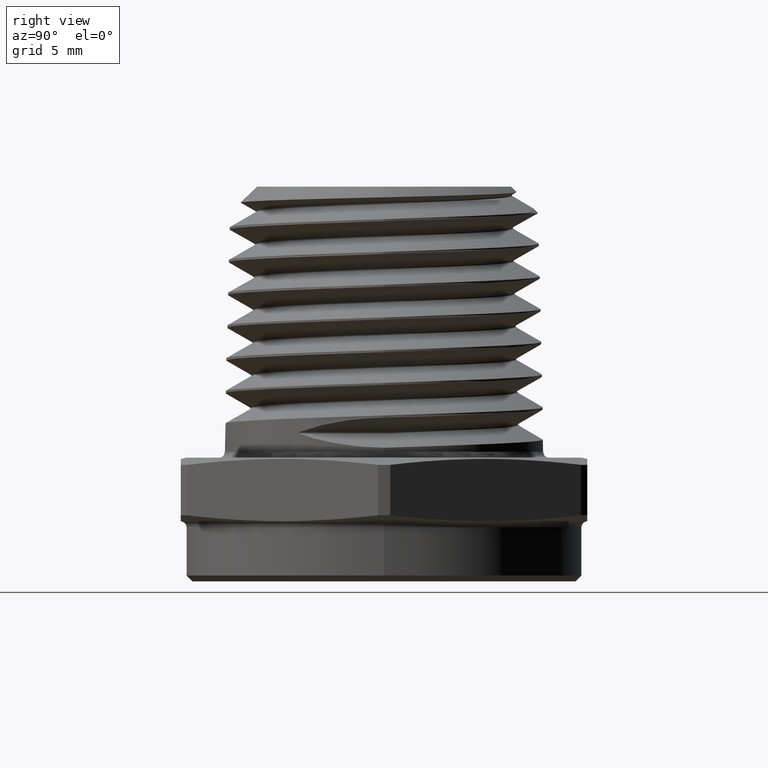
[diagram: clean part render]
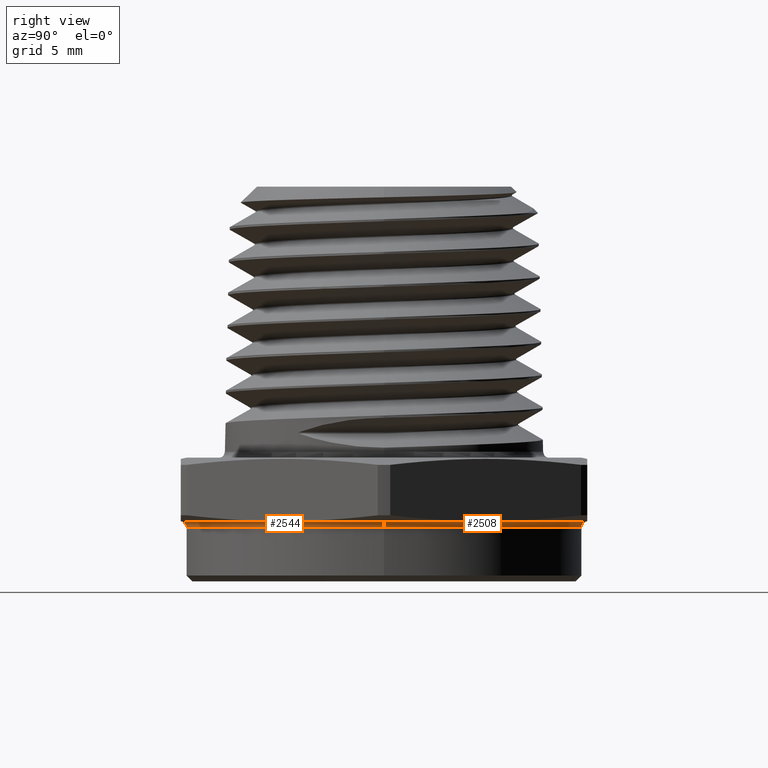
[diagram: same view with one multi-face feature highlighted, each face labeled with its STEP entity id]
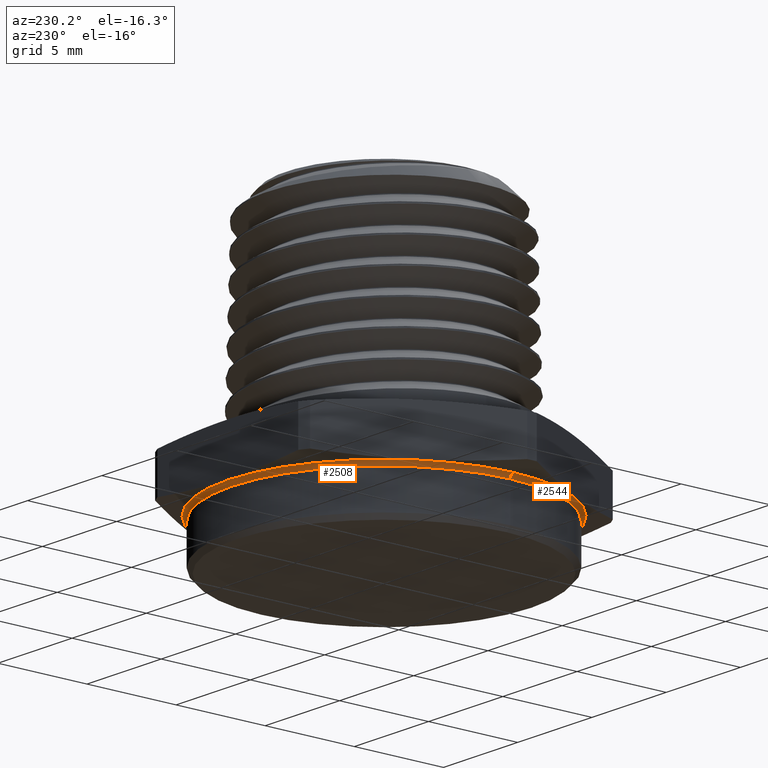
[diagram: same view with one multi-face feature highlighted, each face labeled with its STEP entity id]
A machine part, right view. The highlighted faces form ONE feature: a constant-radius fillet chain: 2 tangent blend faces with common blend radius 0.254 mm. The faces share edges in the B-rep.
A second angle (auxiliary view) of the same feature is appended — it is thin or edge-on in the first view.
Their STEP definitions:
[1] entity #2544 (Torus):
#945 = DIRECTION ( 'NONE',  ( -6.123233995736756200E-017, -0.0000000000000000000, -1.000000000000000000 ) ) ;
#947 = CARTESIAN_POINT ( 'NONE',  ( 2.939123158941460500E-018, 0.0000000000000000000, -0.008097840331950210600 ) ) ;
#949 = DIRECTION ( 'NONE',  ( -1.000000000000000000, 0.0000000000000000000, 6.123233995736756200E-017 ) ) ;
#1033 = CARTESIAN_POINT ( 'NONE',  ( 0.3350000000000000200, 0.0000000000000000000, -0.008097840331950219300 ) ) ;
#1108 = CARTESIAN_POINT ( 'NONE',  ( -0.3429208830918218400, 4.199569618391833300E-017, 0.001683635675387782300 ) ) ;
#1120 = CARTESIAN_POINT ( 'NONE',  ( -0.3350000000000000200, 4.102566777143633400E-017, -0.008097840331950177700 ) ) ;
#1121 = CARTESIAN_POINT ( 'NONE',  ( 0.3429208830918218400, 0.0000000000000000000, 0.001683635675387694700 ) ) ;
#1238 = AXIS2_PLACEMENT_3D ( 'NONE', #3796, #3797, #3798 ) ;
#1239 = AXIS2_PLACEMENT_3D ( 'NONE', #3800, #3801, #3802 ) ;
#1240 = AXIS2_PLACEMENT_3D ( 'NONE', #3804, #3805, #3806 ) ;
#1241 = AXIS2_PLACEMENT_3D ( 'NONE', #3807, #3808, #3809 ) ;
#1310 = AXIS2_PLACEMENT_3D ( 'NONE', #947, #945, #949 ) ;
#1491 = ORIENTED_EDGE ( 'NONE', *, *, #1580, .F. ) ;
#1492 = ORIENTED_EDGE ( 'NONE', *, *, #1581, .T. ) ;
#1493 = ORIENTED_EDGE ( 'NONE', *, *, #1582, .F. ) ;
#1494 = ORIENTED_EDGE ( 'NONE', *, *, #1583, .F. ) ;
#1580 = EDGE_CURVE ( 'NONE', #4986, #5025, #2605, .T. ) ;
#1581 = EDGE_CURVE ( 'NONE', #4986, #5026, #2608, .T. ) ;
#1582 = EDGE_CURVE ( 'NONE', #5023, #5026, #2607, .T. ) ;
#1583 = EDGE_CURVE ( 'NONE', #5025, #5023, #2610, .T. ) ;
#2544 = ADVANCED_FACE ( 'NONE', ( #4670 ), #4669, .F. ) ;
#2605 = CIRCLE ( 'NONE', #1238, 0.3350000000000000200 ) ;
#2607 = CIRCLE ( 'NONE', #1240, 0.3429208830918226700 ) ;
#2608 = CIRCLE ( 'NONE', #1239, 0.01000000000000003000 ) ;
#2610 = CIRCLE ( 'NONE', #1241, 0.01000000000000000000 ) ;
#2713 = EDGE_LOOP ( 'NONE', ( #1491, #1492, #1493, #1494 ) ) ;
#3796 = CARTESIAN_POINT ( 'NONE',  ( 0.0000000000000000000, 0.0000000000000000000, -0.008097840331950198500 ) ) ;
#3797 = DIRECTION ( 'NONE',  ( -6.123233995736756200E-017, -0.0000000000000000000, -1.000000000000000000 ) ) ;
#3798 = DIRECTION ( 'NONE',  ( -1.000000000000000000, 0.0000000000000000000, 6.052368456112523200E-017 ) ) ;
#3800 = CARTESIAN_POINT ( 'NONE',  ( 0.3450000000000000800, 4.225031457058369100E-017, -0.008097840331950233200 ) ) ;
#3801 = DIRECTION ( 'NONE',  ( -1.224646799147353200E-016, 1.000000000000000000, 7.498798913309275700E-033 ) ) ;
#3802 = DIRECTION ( 'NONE',  ( -1.000000000000000000, -1.224646799147346800E-016, 0.0000000000000000000 ) ) ;
#3804 = CARTESIAN_POINT ( 'NONE',  ( 3.538065823107614100E-018, 0.0000000000000000000, 0.001683635675387737400 ) ) ;
#3805 = DIRECTION ( 'NONE',  ( 1.224646799147351200E-016, 0.0000000000000000000, 1.000000000000000000 ) ) ;
#3806 = DIRECTION ( 'NONE',  ( 1.000000000000000000, 0.0000000000000000000, -1.221412310369413900E-016 ) ) ;
#3807 = CARTESIAN_POINT ( 'NONE',  ( -0.3450000000000000800, 0.0000000000000000000, -0.008097840331950189800 ) ) ;
#3808 = DIRECTION ( 'NONE',  ( 0.0000000000000000000, -1.000000000000000000, 0.0000000000000000000 ) ) ;
#3809 = DIRECTION ( 'NONE',  ( 0.0000000000000000000, 0.0000000000000000000, -1.000000000000000000 ) ) ;
#4669 = TOROIDAL_SURFACE ( 'NONE', #1310, 0.3450000000000000800, 0.01000000000000000000 ) ;
#4670 = FACE_OUTER_BOUND ( 'NONE', #2713, .T. ) ;
#4986 = VERTEX_POINT ( 'NONE', #1033 ) ;
#5023 = VERTEX_POINT ( 'NONE', #1108 ) ;
#5025 = VERTEX_POINT ( 'NONE', #1120 ) ;
#5026 = VERTEX_POINT ( 'NONE', #1121 ) ;
[2] entity #2508 (Torus):
#1033 = CARTESIAN_POINT ( 'NONE',  ( 0.3350000000000000200, 0.0000000000000000000, -0.008097840331950219300 ) ) ;
#1108 = CARTESIAN_POINT ( 'NONE',  ( -0.3429208830918218400, 4.199569618391833300E-017, 0.001683635675387782300 ) ) ;
#1120 = CARTESIAN_POINT ( 'NONE',  ( -0.3350000000000000200, 4.102566777143633400E-017, -0.008097840331950177700 ) ) ;
#1121 = CARTESIAN_POINT ( 'NONE',  ( 0.3429208830918218400, 0.0000000000000000000, 0.001683635675387694700 ) ) ;
#1239 = AXIS2_PLACEMENT_3D ( 'NONE', #3800, #3801, #3802 ) ;
#1241 = AXIS2_PLACEMENT_3D ( 'NONE', #3807, #3808, #3809 ) ;
#1242 = AXIS2_PLACEMENT_3D ( 'NONE', #3812, #3813, #3814 ) ;
#1254 = AXIS2_PLACEMENT_3D ( 'NONE', #3897, #3898, #3899 ) ;
#1261 = AXIS2_PLACEMENT_3D ( 'NONE', #2311, #2310, #2348 ) ;
#1404 = ORIENTED_EDGE ( 'NONE', *, *, #1581, .F. ) ;
#1405 = ORIENTED_EDGE ( 'NONE', *, *, #1609, .F. ) ;
#1406 = ORIENTED_EDGE ( 'NONE', *, *, #1583, .T. ) ;
#1407 = ORIENTED_EDGE ( 'NONE', *, *, #1584, .F. ) ;
#1516 = EDGE_LOOP ( 'NONE', ( #1404, #1405, #1406, #1407 ) ) ;
#1581 = EDGE_CURVE ( 'NONE', #4986, #5026, #2608, .T. ) ;
#1583 = EDGE_CURVE ( 'NONE', #5025, #5023, #2610, .T. ) ;
#1584 = EDGE_CURVE ( 'NONE', #5026, #5023, #2609, .T. ) ;
#1609 = EDGE_CURVE ( 'NONE', #5025, #4986, #2452, .T. ) ;
#2310 = DIRECTION ( 'NONE',  ( -6.123233995736756200E-017, -0.0000000000000000000, -1.000000000000000000 ) ) ;
#2311 = CARTESIAN_POINT ( 'NONE',  ( 2.939123158941460500E-018, 0.0000000000000000000, -0.008097840331950210600 ) ) ;
#2348 = DIRECTION ( 'NONE',  ( -1.000000000000000000, 0.0000000000000000000, 6.123233995736756200E-017 ) ) ;
#2452 = CIRCLE ( 'NONE', #1254, 0.3350000000000000200 ) ;
#2487 = FACE_OUTER_BOUND ( 'NONE', #1516, .T. ) ;
#2489 = TOROIDAL_SURFACE ( 'NONE', #1261, 0.3450000000000000800, 0.01000000000000000000 ) ;
#2508 = ADVANCED_FACE ( 'NONE', ( #2487 ), #2489, .F. ) ;
#2608 = CIRCLE ( 'NONE', #1239, 0.01000000000000003000 ) ;
#2609 = CIRCLE ( 'NONE', #1242, 0.3429208830918226700 ) ;
#2610 = CIRCLE ( 'NONE', #1241, 0.01000000000000000000 ) ;
#3800 = CARTESIAN_POINT ( 'NONE',  ( 0.3450000000000000800, 4.225031457058369100E-017, -0.008097840331950233200 ) ) ;
#3801 = DIRECTION ( 'NONE',  ( -1.224646799147353200E-016, 1.000000000000000000, 7.498798913309275700E-033 ) ) ;
#3802 = DIRECTION ( 'NONE',  ( -1.000000000000000000, -1.224646799147346800E-016, 0.0000000000000000000 ) ) ;
#3807 = CARTESIAN_POINT ( 'NONE',  ( -0.3450000000000000800, 0.0000000000000000000, -0.008097840331950189800 ) ) ;
#3808 = DIRECTION ( 'NONE',  ( 0.0000000000000000000, -1.000000000000000000, 0.0000000000000000000 ) ) ;
#3809 = DIRECTION ( 'NONE',  ( 0.0000000000000000000, 0.0000000000000000000, -1.000000000000000000 ) ) ;
#3812 = CARTESIAN_POINT ( 'NONE',  ( 3.538065823107614100E-018, 0.0000000000000000000, 0.001683635675387737400 ) ) ;
#3813 = DIRECTION ( 'NONE',  ( 1.224646799147351200E-016, 0.0000000000000000000, 1.000000000000000000 ) ) ;
#3814 = DIRECTION ( 'NONE',  ( 1.000000000000000000, 0.0000000000000000000, -1.221412310369413900E-016 ) ) ;
#3897 = CARTESIAN_POINT ( 'NONE',  ( 0.0000000000000000000, 0.0000000000000000000, -0.008097840331950198500 ) ) ;
#3898 = DIRECTION ( 'NONE',  ( -6.123233995736756200E-017, -0.0000000000000000000, -1.000000000000000000 ) ) ;
#3899 = DIRECTION ( 'NONE',  ( -1.000000000000000000, 0.0000000000000000000, 6.052368456112523200E-017 ) ) ;
#4986 = VERTEX_POINT ( 'NONE', #1033 ) ;
#5023 = VERTEX_POINT ( 'NONE', #1108 ) ;
#5025 = VERTEX_POINT ( 'NONE', #1120 ) ;
#5026 = VERTEX_POINT ( 'NONE', #1121 ) ;